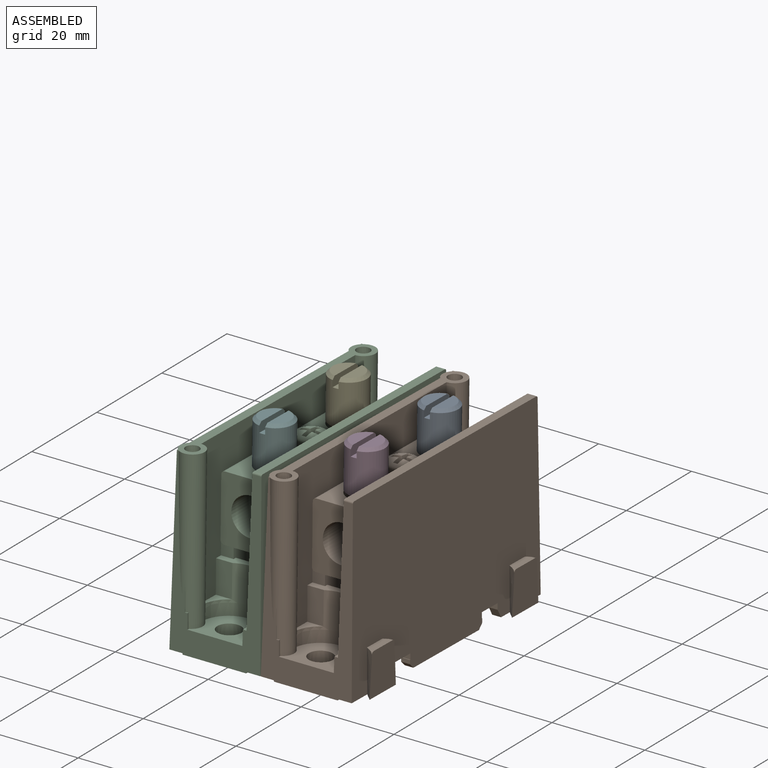
[diagram: assembled view]
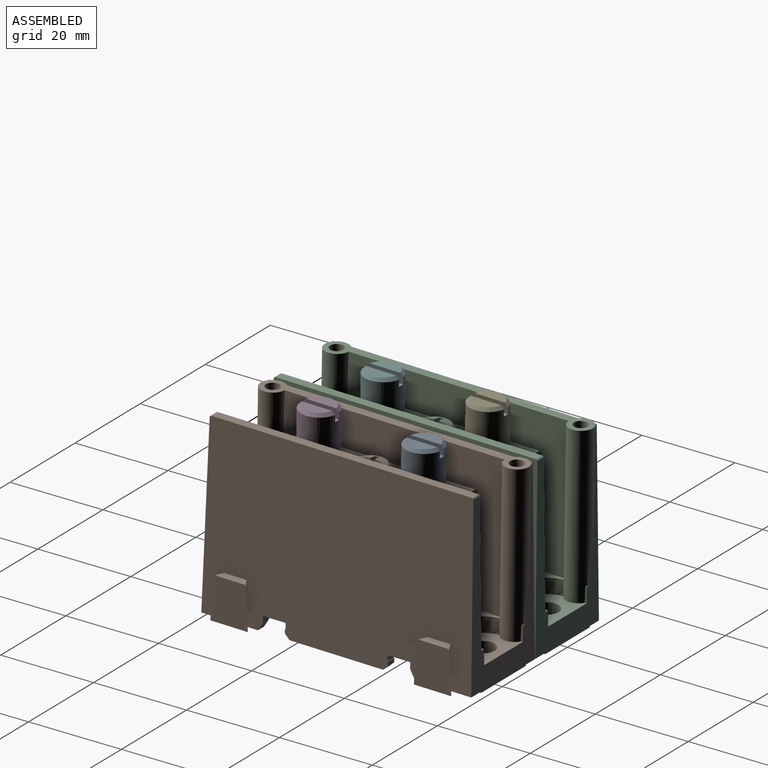
[diagram: assembled view, second angle]
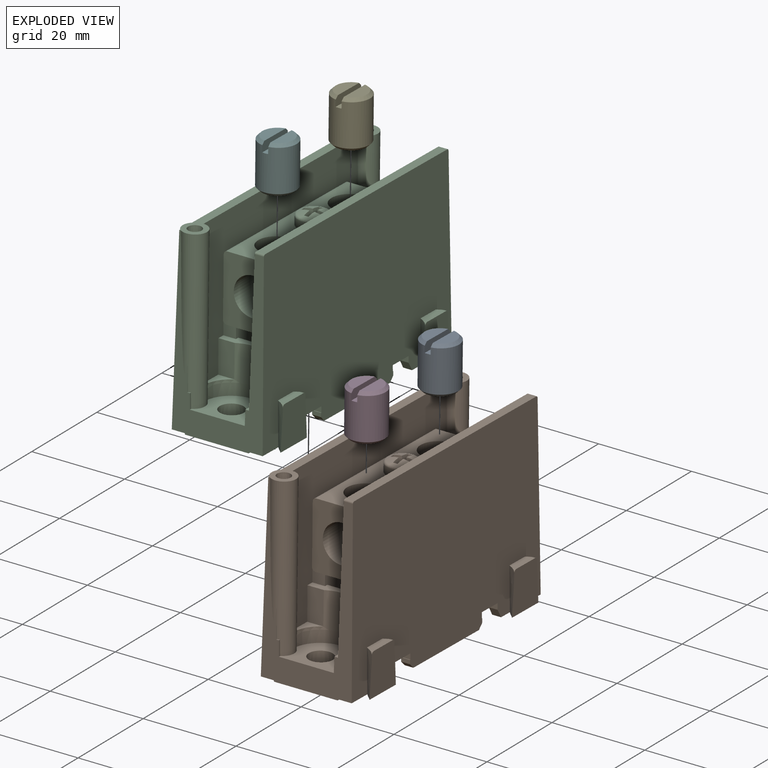
[diagram: exploded view]
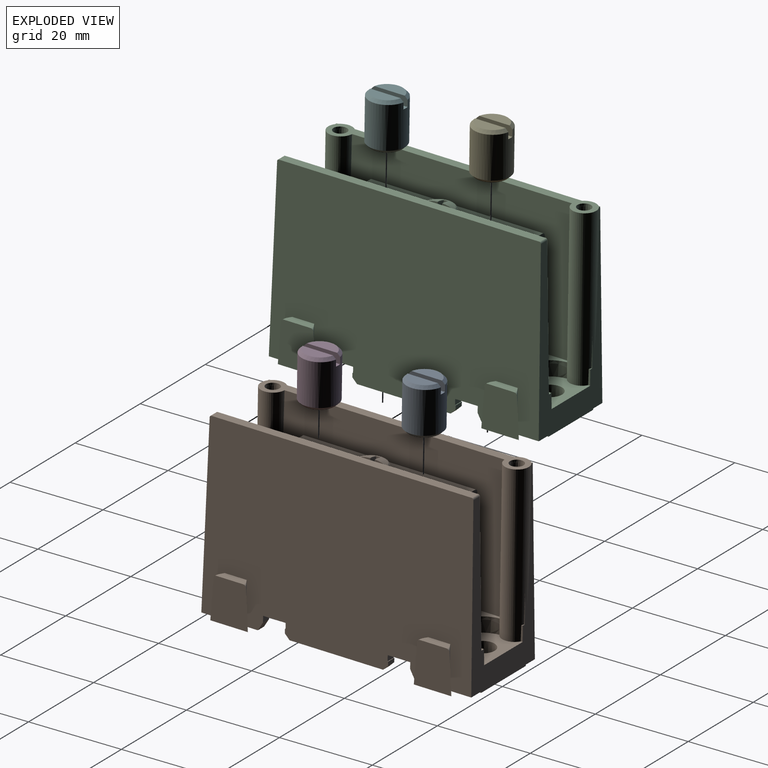
[diagram: exploded view, second angle]
ASSEMBLY  parts=6 mates=5
PART A: 11 faces, bbox 7.9x11.1x7.9 mm
  f0: sphere r=4.37mm, area 24.4mm2, adj f7
  f1: cone r=3.33mm half-angle=45deg, axis (0,-1,0), area 9.1mm2, adj f3,f6,f10
  f2: cone r=3.96mm half-angle=45deg, axis (0,1,0), area 20.6mm2, adj f3,f7
  f3: cylinder r=3.96mm len=8.97mm, axis (0,-1,0), area 219.7mm2, adj f1,f2,f5,f8,f9,f10
  f4: plane 6.53x2.69mm, normal (0,1,0), area 13.2mm2, adj f5,f9
  f5: cone r=3.33mm half-angle=45deg, axis (0,-1,0), area 9.1mm2, adj f3,f4,f9
  f6: plane 6.53x2.69mm, normal (0,1,0), area 13.2mm2, adj f1,f10
  f7: plane 6.66x6.66mm, normal (0,-1,0), area 12.9mm2, adj f0,f2
  f8: plane 7.92x1.27mm, normal (0,1,0), area 10mm2, adj f3,f9,f10
  f9: plane 7.83x2.04mm, normal (-1,0,0), area 15.5mm2, adj f3,f4,f5,f8
  f10: plane 7.83x2.04mm, normal (1,0,0), area 15.5mm2, adj f1,f3,f6,f8
PART B: 214 faces, bbox 22.7x40.1x59.5 mm
  f0: plane 2.76x2.7mm, normal (0,-1,0), area 5.5mm2, adj f1,f6,f21,f48
  f1: bspline ~26.07x3.7mm, area 47.1mm2, adj f0,f2,f6,f20,f22,f48,f49,f50
  f2: plane 5.3x5.3mm, normal (0,-1,0), area 15mm2, adj f1,f6,f20,f21,f29
  f3: cylinder r=3.37mm len=6.73mm, axis (0,-1,0), area 35.7mm2, adj f4,f34
  f4: torus R=2.86mm, axis (0,-1,0), area 12.2mm2, adj f3,f5
  f5: sphere r=7.92mm, area 22.4mm2, adj f4,f7,f8,f9,f10,f11,f12,f13
  f6: cylinder r=1.27mm len=25.4mm, axis (0,-1,0), area 145.4mm2, adj f0,f1,f2,f21
  f7: plane 2.03x1.98mm, normal (-1,0.09,0), area 3.5mm2, adj f5,f8,f18,f19
  f8: plane 1.72x0.94mm, normal (0,0.09,-1), area 1.4mm2, adj f5,f7,f9,f19
  f9: plane 2.03x1.98mm, normal (1,0.09,0), area 3.5mm2, adj f5,f8,f10,f19
  f10: plane 2.04x1.99mm, normal (0,0.09,-1), area 3.5mm2, adj f5,f9,f11,f19
  f11: plane 1.72x0.94mm, normal (1,0.09,0), area 1.4mm2, adj f5,f10,f12,f19
  f12: plane 2.04x1.99mm, normal (0,0.09,1), area 3.5mm2, adj f5,f11,f13,f19
  f13: plane 2.03x1.98mm, normal (1,0.09,0), area 3.5mm2, adj f5,f12,f14,f19
  f14: plane 1.72x0.94mm, normal (0,0.09,1), area 1.4mm2, adj f5,f13,f15,f19
  f15: plane 2.03x1.98mm, normal (-1,0.09,0), area 3.5mm2, adj f5,f14,f16,f19
  f16: plane 2.04x1.99mm, normal (0,0.09,1), area 3.5mm2, adj f5,f15,f17,f19
  f17: plane 1.72x0.94mm, normal (-1,0.09,0), area 1.4mm2, adj f5,f16,f18,f19
  f18: plane 2.04x1.99mm, normal (0,0.09,-1), area 3.5mm2, adj f5,f7,f17,f19
  f19: plane 4.3x4.3mm, normal (0,1,0), area 5.1mm2, adj f7,f8,f9,f10,f11,f12,f13,f14
  f20: bspline ~14.31x3.73mm, area 3.5mm2, adj f1,f2,f21,f22
  f21: bspline ~25.85x3.7mm, area 47.2mm2, adj f0,f2,f6,f20,f22,f48,f49,f50
  f22: plane 5.24x5.24mm, normal (0,1,0), area 13.7mm2, adj f1,f20,f21,f28,f51,f52
  f23: plane 13.43x11.18mm, normal (0,-1,0), area 111.7mm2, adj f33,f37,f38,f88,f170,f174,f175,f176
  f24: cylinder r=3.97mm len=7.94mm, axis (0,1,0), area 156.9mm2, adj f30,f34
  f25: cylinder r=3.97mm len=5.44mm, axis (0,1,0), area 5.6mm2, adj f30,f46
  f26: cylinder r=3.97mm len=7.94mm, axis (0,1,0), area 156.9mm2, adj f30,f34
  f27: cylinder r=3.97mm len=5.44mm, axis (0,1,0), area 5.6mm2, adj f30,f43
  f28: cylinder r=2.58mm len=5.16mm, axis (0,1,0), area 60mm2, adj f22,f30
  f29: cylinder r=2.58mm len=5.16mm, axis (0,1,0), area 67mm2, adj f2,f30
  f30: cylinder r=4.1mm len=37.08mm, axis (0,0,-1), area 764.5mm2, adj f24,f25,f26,f27,f28,f29,f31,f33
  f31: plane 14.22x12.7mm, normal (0,0,1), area 127.3mm2, adj f30,f32,f34,f35,f36,f37,f38,f39
  f32: plane 13.43x11.18mm, normal (0,-1,0), area 111.7mm2, adj f31,f37,f38,f90,f91,f171,f172,f173
  f33: plane 14.22x12.7mm, normal (0,0,-1), area 127.3mm2, adj f23,f30,f34,f35,f36,f37,f38,f39
  f34: plane 37.08x11.18mm, normal (0,1,0), area 279.9mm2, adj f3,f24,f26,f31,f33,f39,f40
  f35: plane 37.08x12.7mm, normal (1,0,0), area 471mm2, adj f31,f33,f37,f40
  f36: plane 37.08x12.7mm, normal (-1,0,0), area 471mm2, adj f31,f33,f38,f39
  f37: cylinder r=0.76mm len=37.08mm, axis (0,0,1), area 44.4mm2, adj f23,f31,f32,f33,f35,f89
  f38: cylinder r=0.76mm len=37.08mm, axis (0,0,-1), area 44.4mm2, adj f23,f31,f32,f33,f36,f47
  f39: cylinder r=0.76mm len=37.08mm, axis (0,0,1), area 44.4mm2, adj f31,f33,f34,f36
  f40: cylinder r=0.76mm len=37.08mm, axis (0,0,-1), area 44.4mm2, adj f31,f33,f34,f35
  f41: plane 5.44x1.08mm, normal (0,1,0), area 4mm2, adj f30,f42
  f42: cylinder r=3.97mm len=5.44mm, axis (0,1,0), area 0mm2, adj f30,f41
  f43: plane 5.44x1.08mm, normal (0,1,0), area 4mm2, adj f27,f30
  f44: plane 5.44x1.08mm, normal (0,1,0), area 4mm2, adj f30,f45
  f45: cylinder r=3.97mm len=5.44mm, axis (0,1,0), area 0mm2, adj f30,f44
  f46: plane 5.44x1.08mm, normal (0,1,0), area 4mm2, adj f25,f30
  f47: plane 35.51x1.21mm, normal (0,1,0), area 42.9mm2, adj f38,f91,f95,f170
  f48: cylinder r=1.47mm len=5.07mm, axis (0,1,0), area 31.2mm2, adj f0,f1,f21,f49,f187
  f49: cylinder r=1.47mm len=4.6mm, axis (0,1,0), area 19mm2, adj f1,f21,f48,f50
  f50: cylinder r=1.47mm len=4.6mm, axis (0,1,0), area 19mm2, adj f1,f21,f49,f51
  f51: cylinder r=1.47mm len=3.59mm, axis (0,1,0), area 17.3mm2, adj f1,f21,f22,f50,f52
  f52: cylinder r=1.47mm len=2.73mm, axis (0,1,0), area 2mm2, adj f1,f22,f51
  f53: cone r=0.32mm half-angle=1deg, axis (0,-1,0), area 3.7mm2, adj f71,f72,f80,f137
  f54: cone r=0.32mm half-angle=1deg, axis (0,-1,0), area 3.7mm2, adj f64,f71,f99,f101
  f55: cylinder r=1.32mm len=7.62mm, axis (0,1,0), area 63.2mm2, adj f130,f131
  f56: cone r=1.46mm half-angle=1deg, axis (0,1,0), area 34.2mm2, adj f103,f130
  f57: cylinder r=1.32mm len=7.62mm, axis (0,1,0), area 63.2mm2, adj f128,f129
  f58: cone r=1.46mm half-angle=1deg, axis (0,1,0), area 34.2mm2, adj f103,f128
  f59: cylinder r=2.59mm len=33.71mm, axis (0,-1,0), area 281.9mm2, adj f62,f94,f103,f110,f111,f112,f113,f114
  f60: cone r=2.55mm half-angle=1deg, axis (0,-1,0), area 82.1mm2, adj f108,f132
  f61: cone r=2.55mm half-angle=1deg, axis (0,-1,0), area 82.1mm2, adj f114,f135
  f62: cone r=5.97mm half-angle=1deg, axis (0,1,0), area 102.6mm2, adj f59,f111,f114,f117,f118,f120,f121,f169
  f63: cone r=5.97mm half-angle=1deg, axis (0,1,0), area 102.6mm2, adj f87,f92,f93,f106,f108,f116,f122,f125
  f64: cone r=6.86mm half-angle=1deg, axis (0,1,0), area 93.6mm2, adj f54,f71,f101,f132,f133,f134,f200,f201
  f65: bspline ~9.02x1.83mm, area 20.1mm2, adj f66,f98,f102,f194,f210,f211
  f66: plane 9.02x8.08mm, normal (-1,0,0), area 67.4mm2, adj f65,f67,f102,f209,f210,f211
  f67: bspline ~9.02x1.83mm, area 20.1mm2, adj f66,f98,f102,f194,f209,f211
  f68: bspline ~9.02x1.83mm, area 20.1mm2, adj f69,f97,f98,f199,f206,f208
  f69: plane 9.02x8.08mm, normal (-1,0,0), area 67.4mm2, adj f68,f70,f97,f206,f207,f208
  f70: bspline ~9.02x1.83mm, area 20.1mm2, adj f69,f97,f98,f199,f207,f208
  f71: plane 52.82x14.93mm, normal (0,-1,0), area 471.3mm2, adj f53,f54,f64,f74,f75,f77,f78,f80
  f72: plane 12.18x3.19mm, normal (0,-1,0), area 20.3mm2, adj f53,f73,f80,f113,f136,f137,f168,f195
  f73: plane 58.12x38.48mm, normal (1,0.02,0), area 1888.9mm2, adj f72,f76,f101,f103,f105,f113,f123,f124
  f74: plane 12.53x4mm, normal (0,-0.02,1), area 28.2mm2, adj f71,f79,f84,f185,f189
  f75: plane 12.53x4mm, normal (0,-0.02,-1), area 28.2mm2, adj f71,f79,f84,f185,f188
  f76: plane 20.14x2.57mm, normal (0,-1,0), area 51.7mm2, adj f73,f80,f99,f154,f162,f188,f189
  f77: plane 4.65x3.92mm, normal (0,-0.02,-1), area 8.9mm2, adj f71,f80,f189
  f78: plane 4.65x3.92mm, normal (0,-0.02,1), area 8.9mm2, adj f71,f99,f188
  f79: cone r=2.77mm half-angle=1deg, axis (0,-1,0), area 109.2mm2, adj f74,f75,f84,f188,f189
  f80: plane 17.83x4.65mm, normal (-1,-0.02,0), area 66.4mm2, adj f53,f71,f72,f76,f77,f162,f163,f164
  f81: plane 11.18x6.09mm, normal (0,-0.02,1), area 48.2mm2, adj f71,f83,f85,f184,f186
  f82: plane 11.18x6.09mm, normal (0,-0.02,-1), area 48.2mm2, adj f71,f83,f86,f184,f186
  f83: plane 5.03x4.42mm, normal (0,-1,0), area 17.9mm2, adj f81,f82,f184,f186
  f84: plane 5.03x4.92mm, normal (0,-1,0), area 17.7mm2, adj f74,f75,f79,f185
  f85: plane 12.6x6.63mm, normal (-1,-0.02,0), area 82.8mm2, adj f71,f81,f182,f183
  f86: plane 12.6x6.63mm, normal (-1,-0.02,0), area 82.8mm2, adj f71,f82,f181,f183
  f87: plane 13.5x2.21mm, normal (0,1,0), area 22.4mm2, adj f63,f90,f91,f92,f93,f94,f95,f171
  f88: plane 2.77x2.57mm, normal (0,0.02,-1), area 7mm2, adj f23,f89,f94,f169,f176
  f89: plane 35.51x1.21mm, normal (0,1,0), area 42.9mm2, adj f37,f88,f90,f94
  f90: plane 2.77x2.57mm, normal (0,0.02,1), area 7mm2, adj f32,f87,f89,f94,f171
  f91: plane 2.77x2.57mm, normal (0,0.02,1), area 7mm2, adj f32,f47,f87,f95,f173
  f92: plane 6.99x3.56mm, normal (0,0.02,1), area 24.4mm2, adj f63,f87,f94,f106
  f93: plane 6.99x3.77mm, normal (0,0.02,1), area 25.8mm2, adj f63,f87,f95,f116
  f94: plane 47.72x30.77mm, normal (-1,0.02,0), area 1087.1mm2, adj f59,f87,f88,f89,f90,f92,f103,f106
  f95: plane 57.84x30.56mm, normal (1,0.02,0), area 1389.4mm2, adj f47,f87,f91,f93,f105,f113,f116,f117
  f96: plane 20.14x1.91mm, normal (0,-1,0), area 38.4mm2, adj f98,f100,f141,f161
  f97: plane 12.22x4.74mm, normal (0,-1,0), area 36.8mm2, adj f68,f69,f70,f98,f100,f113,f138,f139
  f98: plane 58.12x38.48mm, normal (-1,0.02,0), area 2093mm2, adj f65,f67,f68,f70,f96,f97,f102,f105
  f99: plane 17.83x4.65mm, normal (-1,-0.02,0), area 66.4mm2, adj f54,f71,f76,f78,f101,f148,f149,f150
  f100: plane 52.98x11.28mm, normal (1,-0.02,0), area 413.9mm2, adj f71,f96,f97,f102,f139,f140,f141,f142
  f101: plane 12.18x3.19mm, normal (0,-1,0), area 20.3mm2, adj f54,f64,f73,f99,f105,f133,f148,f190
  f102: plane 12.22x4.74mm, normal (0,-1,0), area 36.8mm2, adj f65,f66,f67,f98,f100,f105,f134,f140
  f103: plane 57.72x5.18mm, normal (0,1,0), area 122mm2, adj f56,f58,f59,f73,f94,f105,f113,f123
  f104: plane 6.24x0.13mm, normal (-1,0.02,0), area 0.4mm2, adj f105,f107,f125
  f105: plane 38.74x19.56mm, normal (0,0.02,1), area 235.2mm2, adj f73,f95,f98,f101,f102,f103,f104,f107
  f106: plane 4.54x3.44mm, normal (0,1,0), area 6.8mm2, adj f63,f92,f94,f125
  f107: plane 0.56x0.34mm, normal (0,1,0), area 0.1mm2, adj f104,f105,f109,f125
  f108: plane 11.83x10.35mm, normal (0,1,0), area 82.5mm2, adj f60,f63,f105,f109,f122,f125
  f109: plane 3.15x0.42mm, normal (-1,0.02,0), area 1.2mm2, adj f105,f107,f108,f125
  f110: plane 0.56x0.34mm, normal (0,1,0), area 0.1mm2, adj f59,f112,f113,f115
  f111: plane 4.54x3.44mm, normal (0,1,0), area 6.8mm2, adj f59,f62,f94,f118
  f112: plane 6.24x0.13mm, normal (-1,0.02,0), area 0.4mm2, adj f59,f110,f113
  f113: plane 38.74x19.56mm, normal (0,0.02,-1), area 235.2mm2, adj f59,f72,f73,f95,f97,f98,f103,f110
  f114: plane 11.83x10.35mm, normal (0,1,0), area 82.5mm2, adj f59,f61,f62,f113,f115,f121
  f115: plane 3.15x0.42mm, normal (-1,0.02,0), area 1.2mm2, adj f59,f110,f113,f114
  f116: plane 9.49x3.65mm, normal (0,1,0), area 11.5mm2, adj f63,f93,f95,f105,f122
  f117: plane 6.99x3.77mm, normal (0,0.02,-1), area 25.8mm2, adj f62,f95,f120,f169
  f118: plane 6.99x3.56mm, normal (0,0.02,-1), area 24.4mm2, adj f62,f94,f111,f169
  f119: plane 56.02x1.95mm, normal (0,1,0), area 109mm2, adj f95,f98,f212,f213
  f120: plane 9.49x3.65mm, normal (0,1,0), area 11.5mm2, adj f62,f95,f113,f117,f121
  f121: plane 4.44x3.15mm, normal (1,0.02,0), area 13.9mm2, adj f62,f113,f114,f120
  f122: plane 4.44x3.15mm, normal (1,0.02,0), area 13.9mm2, adj f63,f105,f108,f116
  f123: cylinder r=2.59mm len=33.71mm, axis (0,-1,0), area 99.8mm2, adj f73,f103,f124
  f124: plane 1.65x0.13mm, normal (0,-1,0), area 0.1mm2, adj f73,f123
  f125: cylinder r=2.59mm len=33.71mm, axis (0,-1,0), area 281.9mm2, adj f63,f94,f103,f104,f105,f106,f107,f108
  f126: cylinder r=2.59mm len=33.71mm, axis (0,-1,0), area 99.8mm2, adj f73,f103,f127
  f127: plane 1.65x0.13mm, normal (0,-1,0), area 0.1mm2, adj f73,f126
  f128: plane 2.79x2.79mm, normal (0,1,0), area 0.6mm2, adj f57,f58
  f129: plane 2.64x2.64mm, normal (0,1,0), area 5.5mm2, adj f57
  f130: plane 2.79x2.79mm, normal (0,1,0), area 0.6mm2, adj f55,f56
  f131: plane 2.64x2.64mm, normal (0,1,0), area 5.5mm2, adj f55
  f132: plane 13.71x11.38mm, normal (0,-1,0), area 113.9mm2, adj f60,f64,f105,f133,f134
  f133: plane 4.53x0.25mm, normal (1,-0.02,0), area 1.1mm2, adj f64,f101,f105,f132
  f134: plane 4.9x4.53mm, normal (-1,-0.02,0), area 10mm2, adj f64,f71,f102,f105,f132,f140
  f135: plane 13.71x11.38mm, normal (0,-1,0), area 113.9mm2, adj f61,f113,f136,f137,f138
  f136: plane 4.53x0.25mm, normal (1,-0.02,0), area 1.1mm2, adj f72,f113,f135,f137
  f137: cone r=6.86mm half-angle=1deg, axis (0,1,0), area 93.6mm2, adj f53,f71,f72,f135,f136,f138,f202,f203
  f138: plane 4.9x4.53mm, normal (-1,-0.02,0), area 10mm2, adj f71,f97,f113,f135,f137,f139
  f139: plane 4.65x1.12mm, normal (0,-0.02,1), area 4.8mm2, adj f71,f97,f100,f138
  f140: plane 4.65x1.12mm, normal (0,-0.02,-1), area 4.8mm2, adj f71,f100,f102,f134
  f141: plane 1.92x1.04mm, normal (0,-0.71,0.71), area 2.8mm2, adj f96,f98,f100,f142
  f142: plane 1.92x0.84mm, normal (0,0,1), area 1.6mm2, adj f98,f100,f141,f143
  f143: plane 1.91x0.13mm, normal (0,1,0), area 0.2mm2, adj f98,f100,f142,f144
  f144: plane 1.93x1.22mm, normal (0,0,1), area 2.3mm2, adj f98,f100,f143,f145
  f145: plane 4.85x1.91mm, normal (0,-1,0), area 9.2mm2, adj f98,f100,f144,f146
  f146: plane 1.93x1.3mm, normal (0,0,-1), area 2.5mm2, adj f98,f100,f145,f147
  f147: plane 1.94x1.8mm, normal (0,-0.5,-0.87), area 4mm2, adj f98,f100,f102,f146
  f148: plane 2.6x1.8mm, normal (0,-0.5,-0.87), area 5.3mm2, adj f73,f99,f101,f149
  f149: plane 2.59x1.3mm, normal (0,0,-1), area 3.3mm2, adj f73,f99,f148,f150
  f150: plane 4.85x2.57mm, normal (0,-1,0), area 12.4mm2, adj f73,f99,f149,f151
  f151: plane 2.59x1.22mm, normal (0,0,1), area 3.1mm2, adj f73,f99,f150,f152
  f152: plane 2.57x0.13mm, normal (0,1,0), area 0.3mm2, adj f73,f99,f151,f153
  f153: plane 2.58x0.84mm, normal (0,0,1), area 2.2mm2, adj f73,f99,f152,f154
  f154: plane 2.58x1.04mm, normal (0,-0.71,0.71), area 3.8mm2, adj f73,f76,f99,f153
  f155: plane 1.94x1.8mm, normal (0,-0.5,0.87), area 4mm2, adj f97,f98,f100,f156
  f156: plane 1.93x1.3mm, normal (0,0,1), area 2.5mm2, adj f98,f100,f155,f157
  f157: plane 4.85x1.91mm, normal (0,-1,0), area 9.2mm2, adj f98,f100,f156,f158
  f158: plane 1.93x1.22mm, normal (0,0,-1), area 2.3mm2, adj f98,f100,f157,f159
  f159: plane 1.91x0.13mm, normal (0,1,0), area 0.2mm2, adj f98,f100,f158,f160
  f160: plane 1.92x0.84mm, normal (0,0,-1), area 1.6mm2, adj f98,f100,f159,f161
  f161: plane 1.92x1.04mm, normal (0,-0.71,-0.71), area 2.8mm2, adj f96,f98,f100,f160
  f162: plane 2.58x1.04mm, normal (0,-0.71,-0.71), area 3.8mm2, adj f73,f76,f80,f163
  f163: plane 2.58x0.84mm, normal (0,0,-1), area 2.2mm2, adj f73,f80,f162,f164
  f164: plane 2.57x0.13mm, normal (0,1,0), area 0.3mm2, adj f73,f80,f163,f165
  f165: plane 2.59x1.22mm, normal (0,0,-1), area 3.1mm2, adj f73,f80,f164,f166
  f166: plane 4.85x2.57mm, normal (0,-1,0), area 12.4mm2, adj f73,f80,f165,f167
  f167: plane 2.59x1.3mm, normal (0,0,1), area 3.3mm2, adj f73,f80,f166,f168
  f168: plane 2.6x1.8mm, normal (0,-0.5,0.87), area 5.3mm2, adj f72,f73,f80,f167
  f169: plane 13.5x2.21mm, normal (0,1,0), area 22.4mm2, adj f62,f88,f94,f95,f117,f118,f170,f174
  f170: plane 2.77x2.57mm, normal (0,0.02,-1), area 7mm2, adj f23,f47,f95,f169,f174
  f171: plane 12.69x9.68mm, normal (-1,0.02,0), area 116.5mm2, adj f32,f87,f90,f172,f179,f180
  f172: plane 9.68x8.14mm, normal (0,0.02,1), area 77.2mm2, adj f32,f171,f173,f180
  f173: plane 12.69x9.68mm, normal (1,0.02,0), area 116.5mm2, adj f32,f87,f91,f172,f179,f180
  f174: plane 12.69x9.68mm, normal (1,0.02,0), area 116.5mm2, adj f23,f169,f170,f175,f177,f178
  f175: plane 9.68x8.14mm, normal (0,0.02,-1), area 77.2mm2, adj f23,f174,f176,f178
  f176: plane 12.69x9.68mm, normal (-1,0.02,0), area 116.5mm2, adj f23,f88,f169,f175,f177,f178
  f177: plane 8.05x7.11mm, normal (0,0.02,1), area 56.4mm2, adj f169,f174,f176,f178
  f178: plane 11.69x7.8mm, normal (0,1,0), area 91.2mm2, adj f174,f175,f176,f177
  f179: plane 8.05x7.11mm, normal (0,0.02,-1), area 56.4mm2, adj f87,f171,f173,f180
  f180: plane 11.69x7.8mm, normal (0,1,0), area 91.2mm2, adj f171,f172,f173,f179
  f181: plane 6.63x1.59mm, normal (0,-0.02,-1), area 9.8mm2, adj f71,f86,f100,f183
  f182: plane 6.63x1.59mm, normal (0,-0.02,1), area 9.8mm2, adj f71,f85,f100,f183
  f183: plane 30.12x1.36mm, normal (0,-1,0), area 40.8mm2, adj f85,f86,f100,f181,f182,f184
  f184: plane 5.16x3.57mm, normal (1,-0.02,0), area 18.2mm2, adj f81,f82,f83,f183
  f185: cone r=3.17mm half-angle=1deg, axis (0,1,0), area 63.9mm2, adj f71,f74,f75,f84
  f186: cone r=3.17mm half-angle=1deg, axis (0,1,0), area 63.9mm2, adj f71,f81,f82,f83
  f187: plane 2.95x2.95mm, normal (0,1,0), area 6.8mm2, adj f48
  f188: plane 6.03x5.82mm, normal (-0.76,-0.64,0), area 12.7mm2, adj f71,f75,f76,f78,f79
  f189: plane 6.03x5.82mm, normal (-0.76,-0.64,0), area 12.7mm2, adj f71,f74,f76,f77,f79
  f190: plane 9.27x1.8mm, normal (-0.71,0,-0.71), area 22.6mm2, adj f73,f101,f191,f193
  f191: plane 9.27x8.94mm, normal (1,0,0), area 82.9mm2, adj f101,f190,f192,f193
  f192: plane 9.27x1.8mm, normal (-0.71,0,0.71), area 22.6mm2, adj f73,f101,f191,f193
  f193: plane 8.94x1.64mm, normal (0,-1,0), area 12mm2, adj f73,f190,f191,f192
  f194: plane 5.4x0.57mm, normal (0,1,0), area 2.9mm2, adj f65,f67,f98,f211
  f195: plane 9.27x8.94mm, normal (1,0,0), area 82.9mm2, adj f72,f196,f197,f198
  f196: plane 9.27x1.8mm, normal (-0.71,0,0.71), area 22.6mm2, adj f72,f73,f195,f198
  f197: plane 9.27x1.8mm, normal (-0.71,0,-0.71), area 22.6mm2, adj f72,f73,f195,f198
  f198: plane 8.94x1.64mm, normal (0,-1,0), area 12mm2, adj f73,f195,f196,f197
  f199: plane 5.4x0.57mm, normal (0,1,0), area 2.9mm2, adj f68,f70,f98,f208
  f200: plane 2.9x1.42mm, normal (0,-0.87,-0.5), area 3.6mm2, adj f64,f71,f201,f204
  f201: plane 1.22x0.7mm, normal (1,0,0), area 0.4mm2, adj f64,f71,f200
  f202: plane 2.9x1.42mm, normal (0,-0.87,0.5), area 3.6mm2, adj f71,f137,f203,f205
  f203: plane 1.22x0.7mm, normal (1,0,0), area 0.4mm2, adj f71,f137,f202
  f204: plane 1.26x0.73mm, normal (-1,0,0), area 0.5mm2, adj f64,f71,f200
  f205: plane 1.26x0.73mm, normal (-1,0,0), area 0.5mm2, adj f71,f137,f202
  f206: cylinder r=0.64mm len=1mm, axis (-1,0,0), area 0.3mm2, adj f68,f69,f208
  f207: cylinder r=0.64mm len=1mm, axis (-1,0,0), area 0.3mm2, adj f69,f70,f208
  f208: plane 5.72x1.27mm, normal (0,1,0), area 7.2mm2, adj f68,f69,f70,f199,f206,f207
  f209: cylinder r=0.64mm len=1mm, axis (-1,0,0), area 0.3mm2, adj f66,f67,f211
  f210: cylinder r=0.64mm len=1mm, axis (-1,0,0), area 0.3mm2, adj f65,f66,f211
  f211: plane 5.72x1.27mm, normal (0,1,0), area 7.2mm2, adj f65,f66,f67,f194,f209,f210
  f212: cylinder r=0.38mm len=1.96mm, axis (-1,0,0), area 1.2mm2, adj f95,f98,f113,f119
  f213: cylinder r=0.38mm len=1.96mm, axis (-1,0,0), area 1.2mm2, adj f95,f98,f105,f119
PART C: same geometry as B
PART D: same geometry as A
PART E: 11 faces, bbox 7.9x11.1x7.9 mm
  f0: sphere r=4.37mm, area 24.4mm2, adj f7
  f1: cone r=3.33mm half-angle=45deg, axis (0,-1,0), area 9.1mm2, adj f3,f6,f10
  f2: cone r=3.96mm half-angle=45deg, axis (0,1,0), area 20.6mm2, adj f3,f7
  f3: cylinder r=3.96mm len=8.97mm, axis (0,-1,0), area 219.7mm2, adj f1,f2,f5,f8,f9,f10
  f4: plane 6.53x2.69mm, normal (0,1,0), area 13.2mm2, adj f5,f9
  f5: cone r=3.33mm half-angle=45deg, axis (0,-1,0), area 9.1mm2, adj f3,f4,f9
  f6: plane 6.53x2.69mm, normal (0,1,0), area 13.2mm2, adj f1,f10
  f7: plane 6.66x6.66mm, normal (0,-1,0), area 12.9mm2, adj f0,f2
  f8: plane 7.92x1.27mm, normal (0,1,0), area 10mm2, adj f3,f9,f10
  f9: plane 7.83x2.04mm, normal (-1,0,0), area 15.5mm2, adj f3,f4,f5,f8
  f10: plane 7.83x2.04mm, normal (1,0,0), area 15.5mm2, adj f1,f3,f6,f8
PART F: same geometry as E
PLACE A rot(axis=(1,0,0),89deg) t=(17.49,3.41,24.53)mm
PLACE B rot(axis=(0,-0.71,-0.7),180deg) t=(22.09,-38.26,16.67)mm
PLACE C rot(axis=(0,-0.71,-0.7),180deg) t=(2.4,-38.26,16.67)mm
PLACE D rot(axis=(1,0,0),89deg) t=(17.49,-19.13,25.56)mm
PLACE E rot(axis=(1,0,0),89deg) t=(-2.2,-19.13,25.56)mm
PLACE F rot(axis=(1,0,0),89deg) t=(-2.2,-41.7,25.32)mm
MATE fastened B.f72 <-> C.f97  axis (0,-0.02,-1) through (11.81,-50.96,1.14)mm
MATE cylindrical E.f2 <-> C.f24  axis (0,-0.02,-1) through (0.1,-17.22,32.26)mm
MATE cylindrical F.f2 <-> C.f26  axis (0,-0.02,-1) through (0.1,-39.78,32.65)mm
MATE cylindrical D.f2 <-> B.f26  axis (0,-0.02,-1) through (19.79,-39.78,32.65)mm
MATE cylindrical A.f2 <-> B.f24  axis (0,-0.02,-1) through (19.79,-17.22,32.26)mm
